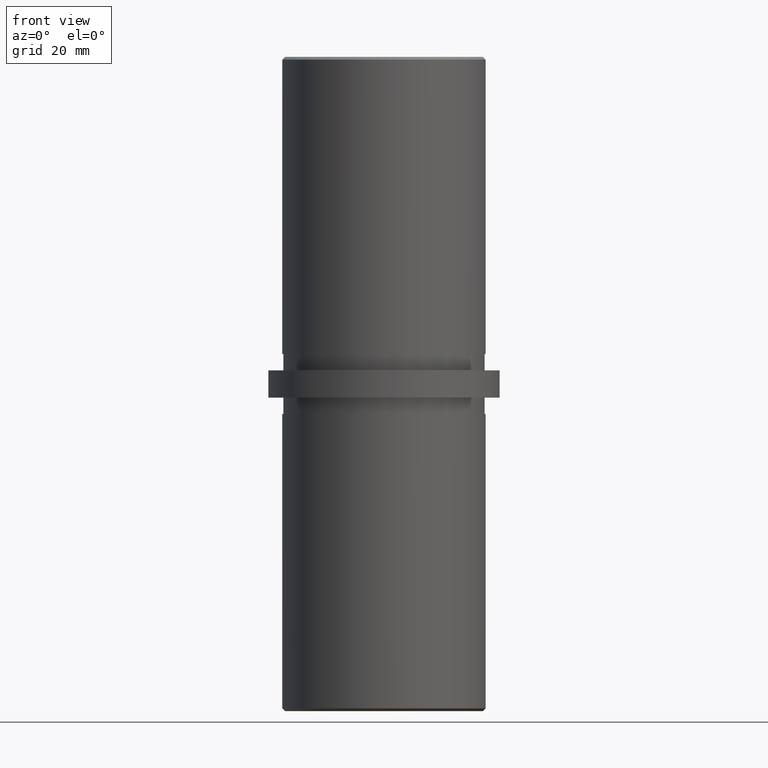
[diagram: clean part render]
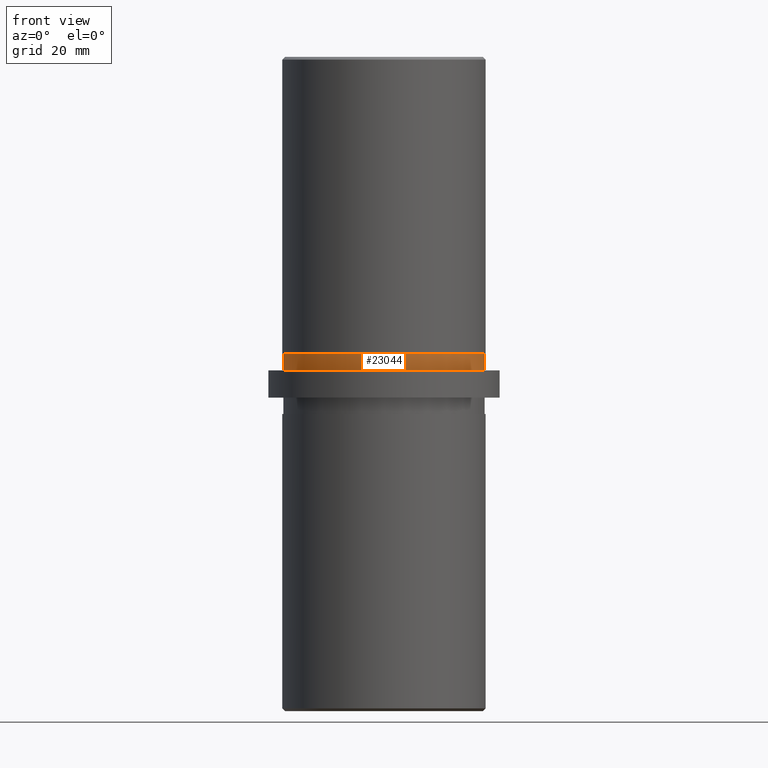
[diagram: same view with one face highlighted and labeled with its STEP entity id]
A machine part, front view. The second image highlights one B-rep face of the part: STEP entity #23044.
In plain terms, the highlighted cylindrical surface (partial cylindrical patch) has radius 18.45 mm, axis along (-0, -0, -1).
Its self-contained STEP definition (entity closure, byte-faithful):
#367 = FACE_OUTER_BOUND ( 'NONE', #13868, .T. ) ;
#1781 = DIRECTION ( 'NONE',  ( 1.000000000000000000, 0.0000000000000000000, 0.0000000000000000000 ) ) ;
#2312 = VERTEX_POINT ( 'NONE', #16668 ) ;
#3436 = ORIENTED_EDGE ( 'NONE', *, *, #8113, .F. ) ;
#3927 = VERTEX_POINT ( 'NONE', #4346 ) ;
#4346 = CARTESIAN_POINT ( 'NONE',  ( -18.45000000000000300, 0.0000000000000000000, 5.500000000000000000 ) ) ;
#5607 = VECTOR ( 'NONE', #9934, 1000.000000000000000 ) ;
#6253 = CARTESIAN_POINT ( 'NONE',  ( 18.45000000000000300, 2.259473344426867100E-015, 2.500000000000000000 ) ) ;
#6457 = AXIS2_PLACEMENT_3D ( 'NONE', #23758, #20004, #1781 ) ;
#6866 = EDGE_CURVE ( 'NONE', #2312, #8811, #22500, .T. ) ;
#7322 = LINE ( 'NONE', #13315, #5607 ) ;
#7862 = CARTESIAN_POINT ( 'NONE',  ( 0.0000000000000000000, 0.0000000000000000000, 5.500000000000000000 ) ) ;
#8113 = EDGE_CURVE ( 'NONE', #3927, #20776, #13840, .T. ) ;
#8734 = EDGE_CURVE ( 'NONE', #3927, #2312, #18751, .T. ) ;
#8811 = VERTEX_POINT ( 'NONE', #6253 ) ;
#9472 = ORIENTED_EDGE ( 'NONE', *, *, #6866, .T. ) ;
#9837 = CYLINDRICAL_SURFACE ( 'NONE', #20250, 18.45000000000000300 ) ;
#9934 = DIRECTION ( 'NONE',  ( -0.0000000000000000000, -0.0000000000000000000, -1.000000000000000000 ) ) ;
#10972 = ORIENTED_EDGE ( 'NONE', *, *, #8734, .T. ) ;
#10979 = AXIS2_PLACEMENT_3D ( 'NONE', #16194, #18126, #11053 ) ;
#11053 = DIRECTION ( 'NONE',  ( 1.000000000000000000, 0.0000000000000000000, 0.0000000000000000000 ) ) ;
#11335 = ORIENTED_EDGE ( 'NONE', *, *, #12070, .F. ) ;
#11586 = DIRECTION ( 'NONE',  ( -0.0000000000000000000, -0.0000000000000000000, -1.000000000000000000 ) ) ;
#11966 = DIRECTION ( 'NONE',  ( -0.0000000000000000000, -0.0000000000000000000, -1.000000000000000000 ) ) ;
#12070 = EDGE_CURVE ( 'NONE', #20776, #8811, #7322, .T. ) ;
#13315 = CARTESIAN_POINT ( 'NONE',  ( 18.45000000000000300, 2.259473344426867100E-015, 5.500000000000000000 ) ) ;
#13713 = CARTESIAN_POINT ( 'NONE',  ( -18.45000000000000300, 0.0000000000000000000, 5.500000000000000000 ) ) ;
#13840 = CIRCLE ( 'NONE', #10979, 18.45000000000000300 ) ;
#13868 = EDGE_LOOP ( 'NONE', ( #11335, #3436, #10972, #9472 ) ) ;
#15727 = DIRECTION ( 'NONE',  ( -1.000000000000000000, 0.0000000000000000000, 0.0000000000000000000 ) ) ;
#16194 = CARTESIAN_POINT ( 'NONE',  ( 0.0000000000000000000, 0.0000000000000000000, 5.500000000000000000 ) ) ;
#16668 = CARTESIAN_POINT ( 'NONE',  ( -18.45000000000000300, 0.0000000000000000000, 2.500000000000000000 ) ) ;
#17034 = VECTOR ( 'NONE', #11966, 1000.000000000000000 ) ;
#18126 = DIRECTION ( 'NONE',  ( 0.0000000000000000000, 0.0000000000000000000, 1.000000000000000000 ) ) ;
#18751 = LINE ( 'NONE', #13713, #17034 ) ;
#20004 = DIRECTION ( 'NONE',  ( 0.0000000000000000000, 0.0000000000000000000, 1.000000000000000000 ) ) ;
#20250 = AXIS2_PLACEMENT_3D ( 'NONE', #7862, #11586, #15727 ) ;
#20776 = VERTEX_POINT ( 'NONE', #21140 ) ;
#21140 = CARTESIAN_POINT ( 'NONE',  ( 18.45000000000000300, 2.259473344426867100E-015, 5.500000000000000000 ) ) ;
#22500 = CIRCLE ( 'NONE', #6457, 18.45000000000000300 ) ;
#23044 = ADVANCED_FACE ( 'NONE', ( #367 ), #9837, .T. ) ;
#23758 = CARTESIAN_POINT ( 'NONE',  ( 0.0000000000000000000, 0.0000000000000000000, 2.500000000000000000 ) ) ;